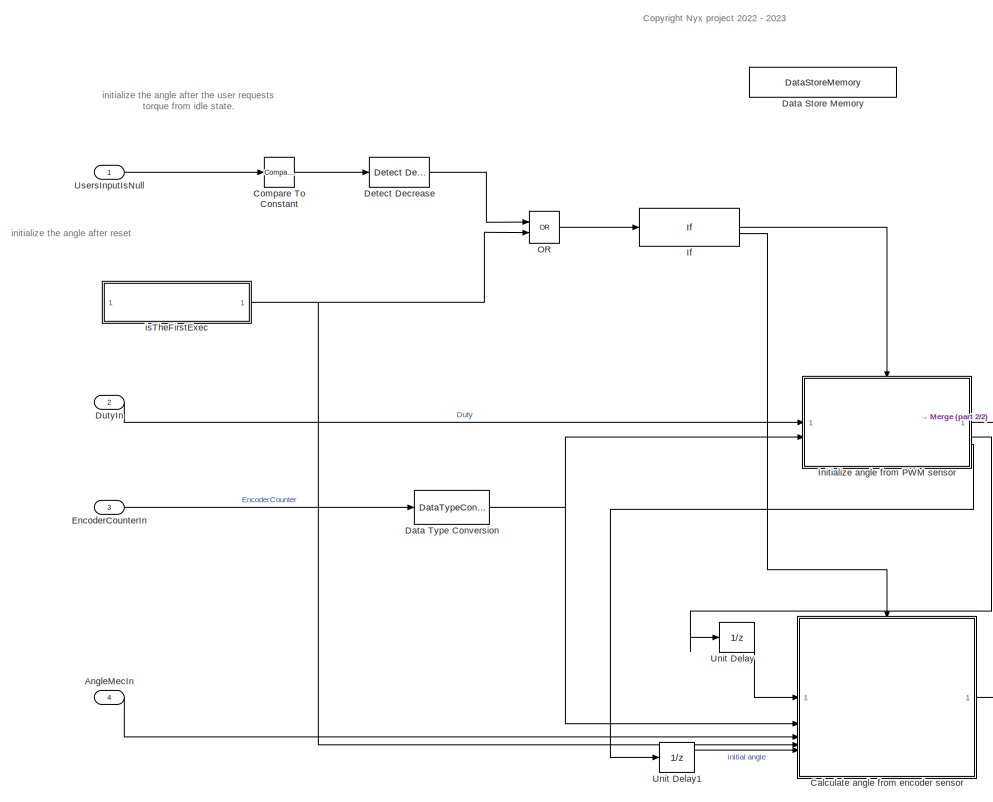
[diagram: root canvas - part 1/2, left side, full height]
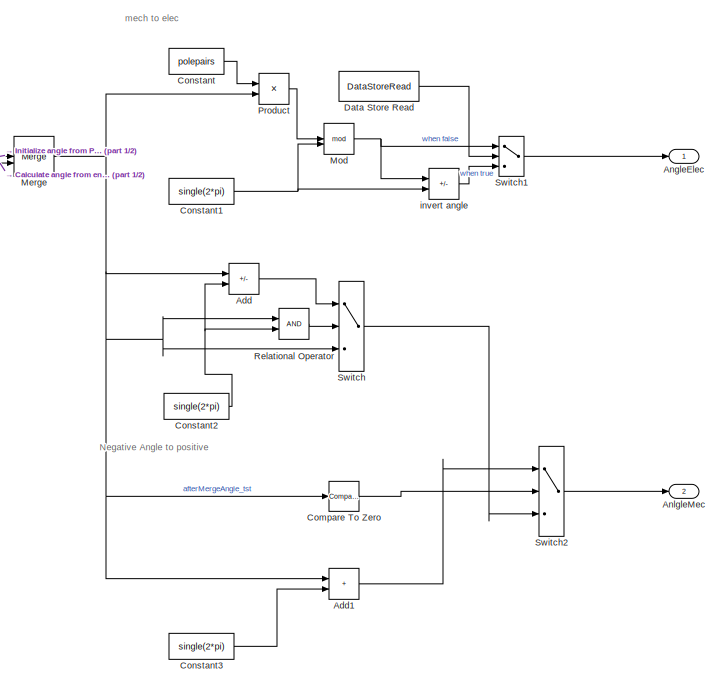
[diagram: root canvas - part 2/2, bottom right region]
MODEL slx_751210fbe877
KIND model
CONFIG AbsTol = auto
CONFIG EnableMultiTasking = off
CONFIG FixedStep = 4*Ts
CONFIG MaxStep = auto
CONFIG MinStep = auto
CONFIG RelTol = 1e-3
CONFIG SampleTimeConstraint = Unconstrained
CONFIG SolverName = FixedStepDiscrete
CONFIG StartTime = 0.0
CONFIG StopTime = 10.0
BLOCK [Sum] Add
  IconShape = rectangular
  Inputs = +-
BLOCK [Sum] Add1
  IconShape = rectangular
BLOCK [Outport] AngleElec
BLOCK [Inport] AngleMecIn
  OutDataTypeStr = single
  Port = 4
BLOCK [Outport] AnlgleMec
  Port = 2
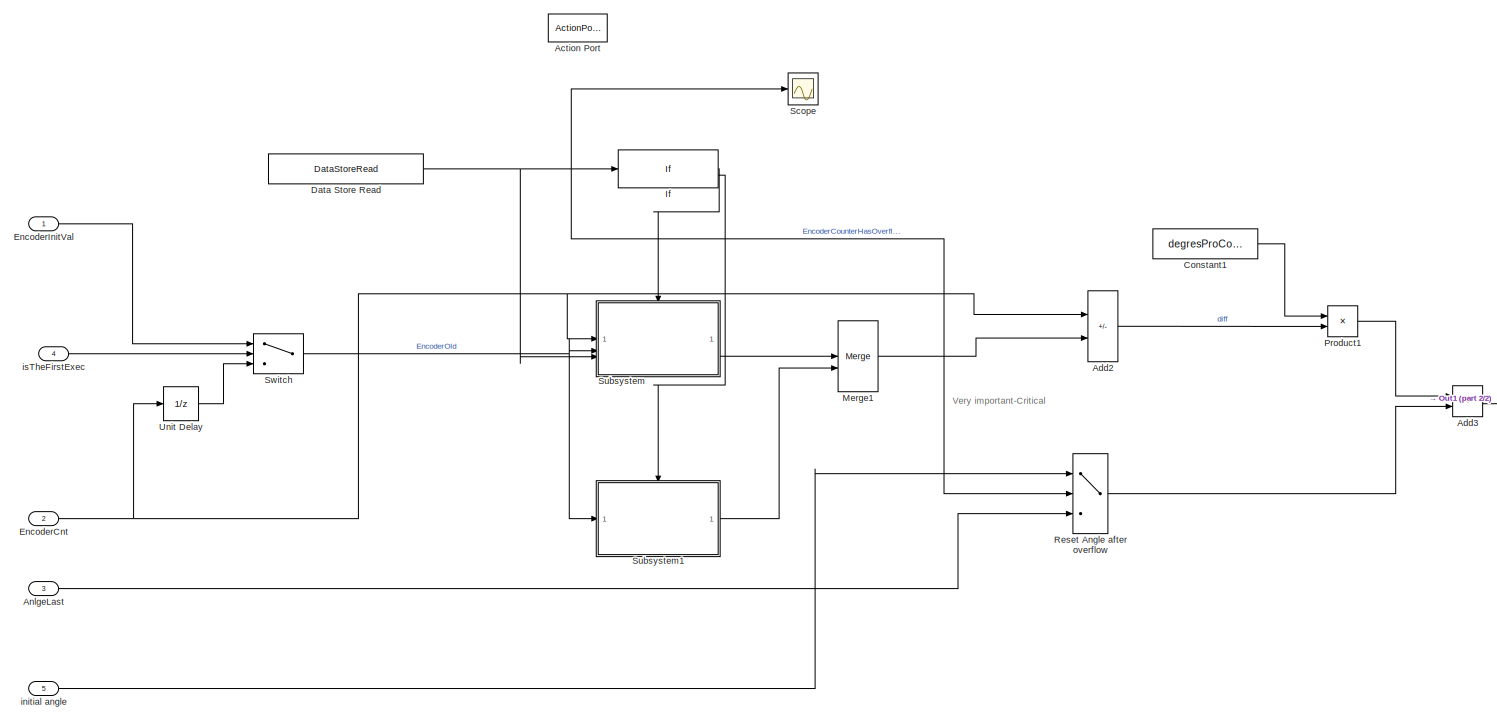
[diagram: Calculate angle from encoder sensor - part 1/2, most of the canvas]
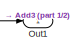
[diagram: Calculate angle from encoder sensor - part 2/2, middle right region]
BLOCK [SubSystem] Calculate angle from encoder sensor
  TreatAsAtomicUnit = on
BLOCK [ActionPort] Calculate angle from encoder sensor/Action Port
  ActionPortLabel = else
BLOCK [Sum] Calculate angle from encoder sensor/Add2
  AccumDataTypeStr = Inherit: Same as first input
  IconShape = rectangular
  InputSameDT = on
  Inputs = +-
  OutDataTypeStr = Inherit: Same as first input
  SaturateOnIntegerOverflow = on
BLOCK [Sum] Calculate angle from encoder sensor/Add3
  IconShape = rectangular
BLOCK [Inport] Calculate angle from encoder sensor/AnlgeLast
  Port = 3
BLOCK [Constant] Calculate angle from encoder sensor/Constant1
  Value = degresProCounter
BLOCK [DataStoreRead] Calculate angle from encoder sensor/Data Store Read
  DataStoreName = EncoderCounterHasOverflowed
  IndexOptions = Index vector (dialog)
  Indices = 1
  OutputSizes = 1
BLOCK [Inport] Calculate angle from encoder sensor/EncoderCnt
  Port = 2
BLOCK [Inport] Calculate angle from encoder sensor/EncoderInitVal
BLOCK [If] Calculate angle from encoder sensor/If
  IfExpression = u1  == 1
BLOCK [Merge] Calculate angle from encoder sensor/Merge1
BLOCK [Outport] Calculate angle from encoder sensor/Out1
BLOCK [Product] Calculate angle from encoder sensor/Product1
  OutDataTypeStr = single
  RndMeth = Simplest
BLOCK [Switch] Calculate angle from encoder sensor/Reset Angle after overflow
  Criteria = u2 > Threshold
  InputSameDT = off
  SaturateOnIntegerOverflow = off
BLOCK [Scope] Calculate angle from encoder sensor/Scope
  Floating = off
  NumInputPorts = 1
  ScopeSpecificationString = Simulink.scopes.TimeScopeBlockCfg('CurrentConfiguration', extmgr.ConfigurationSet(extmgr.Configuration('Core','General UI',true),extmgr.Configuration('Core','Source UI',true),extmgr.Configuration('Sources','WiredSimulink',true),extmgr.Configuration('Visuals','Time Domain',true,'SerializedDisplays',{struct('MinYLimReal','-0.125','MaxYLimReal','1.125','YLabelReal','','MinYLimMag','0.00000','MaxYLimM...<+1381ch>
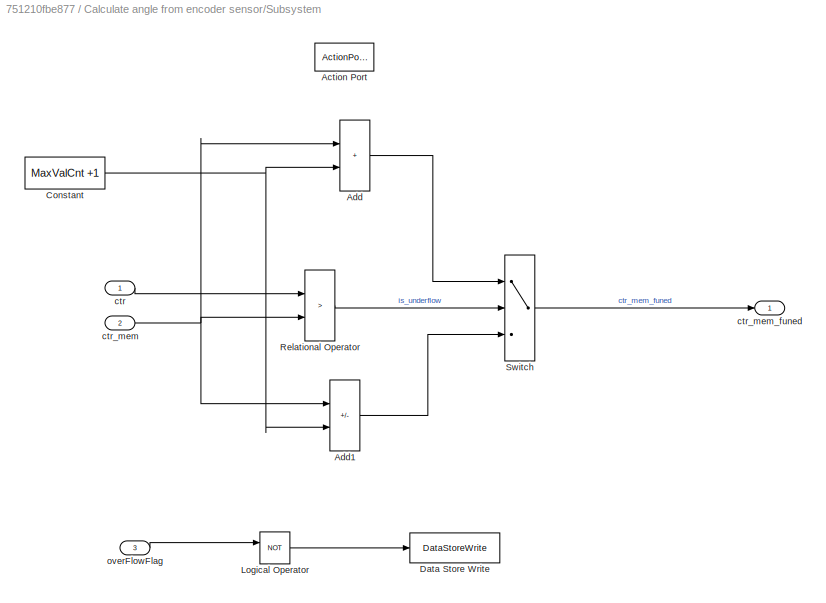
BLOCK [SubSystem] Calculate angle from encoder sensor/Subsystem
BLOCK [ActionPort] Calculate angle from encoder sensor/Subsystem/Action Port
  ActionPortLabel = if(u1  == 1)
BLOCK [Sum] Calculate angle from encoder sensor/Subsystem/Add
  AccumDataTypeStr = Inherit: Same as first input
  IconShape = rectangular
  OutDataTypeStr = Inherit: Same as first input
  SaturateOnIntegerOverflow = on
BLOCK [Sum] Calculate angle from encoder sensor/Subsystem/Add1
  AccumDataTypeStr = Inherit: Same as first input
  IconShape = rectangular
  Inputs = +-
  OutDataTypeStr = Inherit: Same as first input
  SaturateOnIntegerOverflow = on
BLOCK [Constant] Calculate angle from encoder sensor/Subsystem/Constant
  Value = MaxValCnt +1
BLOCK [DataStoreWrite] Calculate angle from encoder sensor/Subsystem/Data Store Write
  DataStoreName = EncoderCounterHasOverflowed
  IndexOptions = Index vector (dialog)
  Indices = 1
  OutputSizes = 1
BLOCK [Logic] Calculate angle from encoder sensor/Subsystem/Logical Operator
  AllPortsSameDT = off
  IconShape = distinctive
  Operator = NOT
  OutDataTypeStr = boolean
BLOCK [RelationalOperator] Calculate angle from encoder sensor/Subsystem/Relational Operator
  Operator = >
  OutDataTypeStr = boolean
  RndMeth = Simplest
BLOCK [Switch] Calculate angle from encoder sensor/Subsystem/Switch
  Criteria = u2 ~= 0
  OutDataTypeStr = Inherit: Same as first input
  SaturateOnIntegerOverflow = off
BLOCK [Inport] Calculate angle from encoder sensor/Subsystem/ctr
BLOCK [Inport] Calculate angle from encoder sensor/Subsystem/ctr_mem
  Port = 2
BLOCK [Outport] Calculate angle from encoder sensor/Subsystem/ctr_mem_funed
BLOCK [Inport] Calculate angle from encoder sensor/Subsystem/overFlowFlag
  Port = 3
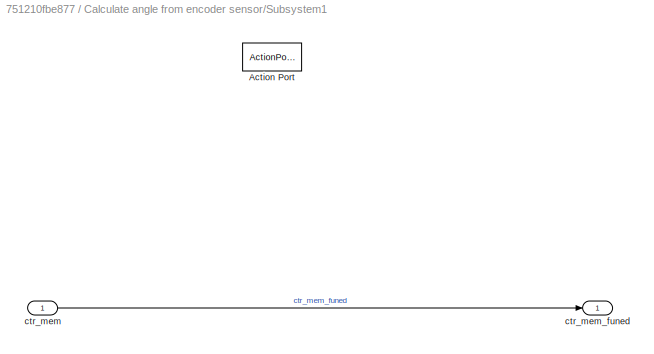
BLOCK [SubSystem] Calculate angle from encoder sensor/Subsystem1
BLOCK [ActionPort] Calculate angle from encoder sensor/Subsystem1/Action Port
  ActionPortLabel = else
BLOCK [Inport] Calculate angle from encoder sensor/Subsystem1/ctr_mem
BLOCK [Outport] Calculate angle from encoder sensor/Subsystem1/ctr_mem_funed
BLOCK [Switch] Calculate angle from encoder sensor/Switch
  Criteria = u2 > Threshold
  InputSameDT = off
  SaturateOnIntegerOverflow = off
  Threshold = false
BLOCK [UnitDelay] Calculate angle from encoder sensor/Unit Delay
  HasFrameUpgradeWarning = on
  SampleTime = -1
  StateMustResolveToSignalObject = on
  StateName = EncoderCounterOld
BLOCK [Inport] Calculate angle from encoder sensor/initial angle
  Port = 5
BLOCK [Inport] Calculate angle from encoder sensor/isTheFirstExec
  Port = 4
BLOCK [Reference] Compare To Constant  REF=simulink/Logic and Bit
Operations/Compare
To Constant
  SourceBlock = simulink/Logic and Bit\nOperations/Compare\nTo Constant
  SourceType = Compare To Constant
BLOCK [Reference] Compare To Zero  REF=simulink/Logic and Bit
Operations/Compare
To Zero
  SourceBlock = simulink/Logic and Bit\nOperations/Compare\nTo Zero
  SourceType = Compare To Zero
BLOCK [Constant] Constant
  Value = polepairs
BLOCK [Constant] Constant1
  OutDataTypeStr = single
  Value = single(2*pi)
BLOCK [Constant] Constant2
  OutDataTypeStr = single
  Value = single(2*pi)
BLOCK [Constant] Constant3
  OutDataTypeStr = single
  Value = single(2*pi)
BLOCK [DataStoreMemory] Data Store Memory
  DataStoreName = Sig_invert_angleElec
  InitialValue = 1
  ShowAdditionalParam = off
  StateMustResolveToSignalObject = on
  WriteAfterWriteMsg = warning
BLOCK [DataStoreRead] Data Store Read
  DataStoreName = Sig_invert_angleElec
  IndexOptions = Index vector (dialog)
  Indices = 1
  OutputSizes = 1
BLOCK [DataTypeConversion] Data Type Conversion
  OutDataTypeStr = int32
  RndMeth = Floor
  SaturateOnIntegerOverflow = off
BLOCK [Reference] Detect Decrease  REF=simulink/Logic and Bit
Operations/Detect
Decrease
  SourceBlock = simulink/Logic and Bit\nOperations/Detect\nDecrease
  SourceType = Detect Decrease
BLOCK [Inport] DutyIn
  OutDataTypeStr = uint16
  Port = 2
BLOCK [Inport] EncoderCounterIn
  OutDataTypeStr = uint32
  Port = 3
BLOCK [If] If
  IfExpression = u1  == 1
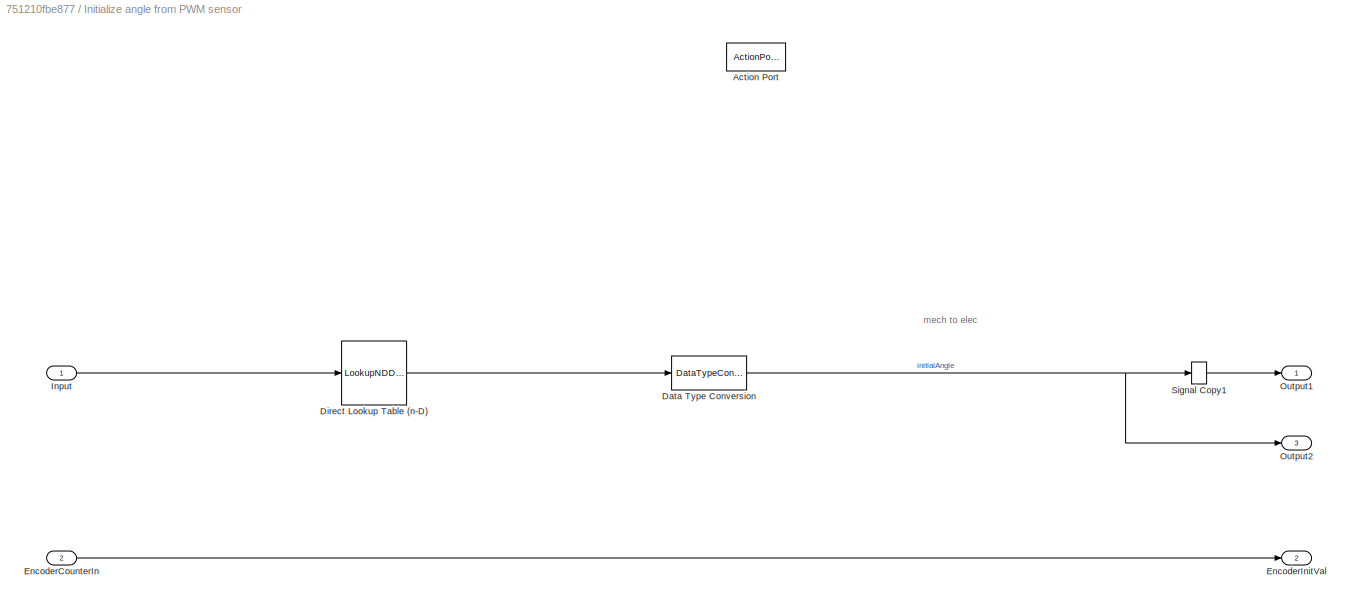
BLOCK [SubSystem] Initialize angle from PWM sensor
BLOCK [ActionPort] Initialize angle from PWM sensor/Action Port
  ActionPortLabel = if(u1  == 1)
BLOCK [DataTypeConversion] Initialize angle from PWM sensor/Data Type Conversion
  OutDataTypeStr = single
  RndMeth = Floor
  SaturateOnIntegerOverflow = off
BLOCK [LookupNDDirect] Initialize angle from PWM sensor/Direct Lookup Table (n-D)
  NumberOfTableDimensions = 1
  Table = Angle_T
BLOCK [Inport] Initialize angle from PWM sensor/EncoderCounterIn
  Port = 2
BLOCK [Outport] Initialize angle from PWM sensor/EncoderInitVal
  Port = 2
BLOCK [Inport] Initialize angle from PWM sensor/Input
  OutDataTypeStr = uint16
BLOCK [Outport] Initialize angle from PWM sensor/Output1
BLOCK [Outport] Initialize angle from PWM sensor/Output2
  Port = 3
BLOCK [SignalConversion] Initialize angle from PWM sensor/Signal Copy1
  OverrideOpt = off
BLOCK [Merge] Merge
BLOCK [Math] Mod
  Operator = mod
  OutputSignalType = real
BLOCK [Logic] OR
  AllPortsSameDT = off
  IconShape = distinctive
  Operator = OR
  OutDataTypeStr = boolean
BLOCK [Product] Product
  OutDataTypeStr = single
  RndMeth = Simplest
BLOCK [RelationalOperator] Relational Operator
  InputSameDT = off
  OutDataTypeStr = boolean
  RndMeth = Simplest
BLOCK [Switch] Switch
  Criteria = u2 > Threshold
  InputSameDT = off
  SaturateOnIntegerOverflow = off
BLOCK [Switch] Switch1
  Criteria = u2 > Threshold
  InputSameDT = off
  SaturateOnIntegerOverflow = off
BLOCK [Switch] Switch2
  Criteria = u2 > Threshold
  InputSameDT = off
  SaturateOnIntegerOverflow = off
BLOCK [UnitDelay] Unit Delay
  HasFrameUpgradeWarning = on
  SampleTime = -1
BLOCK [UnitDelay] Unit Delay1
  HasFrameUpgradeWarning = on
  SampleTime = -1
BLOCK [Inport] UsersInputIsNull
  OutDataTypeStr = boolean
BLOCK [Sum] invert angle
  IconShape = rectangular
  Inputs = -+
BLOCK [SubSystem] isTheFirstExec
  ReferencedSubsystem = detectStartUp
  SystemSampleTime = 4*Ts
ANNOTATION (root): <copyright redacted>
ANNOTATION (root): Negative Angle to positive
ANNOTATION (root): initialize the angle after reset
ANNOTATION (root): initialize the angle after the user requests torque from idle state.
ANNOTATION (root): mech to elec
ANNOTATION Calculate angle from encoder sensor: Very important-Critical
ANNOTATION Initialize angle from PWM sensor: mech to elec
LINE Add1:1 -> Switch2:1
LINE Add:1 -> Switch:1
LINE AngleMecIn:1 -> Calculate angle from encoder sensor:3
LINE Calculate angle from encoder sensor/Add2:1 -> Calculate angle from encoder sensor/Product1:2
LINE Calculate angle from encoder sensor/Add3:1 -> Calculate angle from encoder sensor/Out1:1
LINE Calculate angle from encoder sensor/AnlgeLast:1 -> Calculate angle from encoder sensor/Reset Angle after overflow:3
LINE Calculate angle from encoder sensor/Constant1:1 -> Calculate angle from encoder sensor/Product1:1
NET Calculate angle from encoder sensor/Data Store Read:1 -> Calculate angle from encoder sensor/If:1, Calculate angle from encoder sensor/Reset Angle after overflow:2, Calculate angle from encoder sensor/Scope:1, Calculate angle from encoder sensor/Subsystem:3
NET Calculate angle from encoder sensor/EncoderCnt:1 -> Calculate angle from encoder sensor/Add2:1, Calculate angle from encoder sensor/Subsystem:1, Calculate angle from encoder sensor/Unit Delay:1
LINE Calculate angle from encoder sensor/EncoderInitVal:1 -> Calculate angle from encoder sensor/Switch:1
LINE Calculate angle from encoder sensor/If:1 -> Calculate angle from encoder sensor/Subsystem:ifaction
LINE Calculate angle from encoder sensor/If:2 -> Calculate angle from encoder sensor/Subsystem1:ifaction
LINE Calculate angle from encoder sensor/Merge1:1 -> Calculate angle from encoder sensor/Add2:2
LINE Calculate angle from encoder sensor/Product1:1 -> Calculate angle from encoder sensor/Add3:1
LINE Calculate angle from encoder sensor/Reset Angle after overflow:1 -> Calculate angle from encoder sensor/Add3:2
LINE Calculate angle from encoder sensor/Subsystem/Add1:1 -> Calculate angle from encoder sensor/Subsystem/Switch:3
LINE Calculate angle from encoder sensor/Subsystem/Add:1 -> Calculate angle from encoder sensor/Subsystem/Switch:1
NET Calculate angle from encoder sensor/Subsystem/Constant:1 -> Calculate angle from encoder sensor/Subsystem/Add1:2, Calculate angle from encoder sensor/Subsystem/Add:2
LINE Calculate angle from encoder sensor/Subsystem/Logical Operator:1 -> Calculate angle from encoder sensor/Subsystem/Data Store Write:1
LINE Calculate angle from encoder sensor/Subsystem/Relational Operator:1 -> Calculate angle from encoder sensor/Subsystem/Switch:2
LINE Calculate angle from encoder sensor/Subsystem/Switch:1 -> Calculate angle from encoder sensor/Subsystem/ctr_mem_funed:1
LINE Calculate angle from encoder sensor/Subsystem/ctr:1 -> Calculate angle from encoder sensor/Subsystem/Relational Operator:1
NET Calculate angle from encoder sensor/Subsystem/ctr_mem:1 -> Calculate angle from encoder sensor/Subsystem/Add1:1, Calculate angle from encoder sensor/Subsystem/Add:1, Calculate angle from encoder sensor/Subsystem/Relational Operator:2
LINE Calculate angle from encoder sensor/Subsystem/overFlowFlag:1 -> Calculate angle from encoder sensor/Subsystem/Logical Operator:1
LINE Calculate angle from encoder sensor/Subsystem1/ctr_mem:1 -> Calculate angle from encoder sensor/Subsystem1/ctr_mem_funed:1
LINE Calculate angle from encoder sensor/Subsystem1:1 -> Calculate angle from encoder sensor/Merge1:2
LINE Calculate angle from encoder sensor/Subsystem:1 -> Calculate angle from encoder sensor/Merge1:1
NET Calculate angle from encoder sensor/Switch:1 -> Calculate angle from encoder sensor/Subsystem1:1, Calculate angle from encoder sensor/Subsystem:2
LINE Calculate angle from encoder sensor/Unit Delay:1 -> Calculate angle from encoder sensor/Switch:3
LINE Calculate angle from encoder sensor/initial angle:1 -> Calculate angle from encoder sensor/Reset Angle after overflow:1
LINE Calculate angle from encoder sensor/isTheFirstExec:1 -> Calculate angle from encoder sensor/Switch:2
LINE Calculate angle from encoder sensor:1 -> Merge:2
LINE Compare To Constant:1 -> Detect Decrease:1
LINE Compare To Zero:1 -> Switch2:2
NET Constant1:1 -> Mod:2, invert angle:2
NET Constant2:1 -> Add:2, Relational Operator:2
LINE Constant3:1 -> Add1:2
LINE Constant:1 -> Product:1
LINE Data Store Read:1 -> Switch1:2
NET Data Type Conversion:1 -> Calculate angle from encoder sensor:2, Initialize angle from PWM sensor:2
LINE Detect Decrease:1 -> OR:1
LINE DutyIn:1 -> Initialize angle from PWM sensor:1
LINE EncoderCounterIn:1 -> Data Type Conversion:1
LINE If:1 -> Initialize angle from PWM sensor:ifaction
LINE If:2 -> Calculate angle from encoder sensor:ifaction
NET Initialize angle from PWM sensor/Data Type Conversion:1 -> Initialize angle from PWM sensor/Output2:1, Initialize angle from PWM sensor/Signal Copy1:1
LINE Initialize angle from PWM sensor/Direct Lookup Table (n-D):1 -> Initialize angle from PWM sensor/Data Type Conversion:1
LINE Initialize angle from PWM sensor/EncoderCounterIn:1 -> Initialize angle from PWM sensor/EncoderInitVal:1
LINE Initialize angle from PWM sensor/Input:1 -> Initialize angle from PWM sensor/Direct Lookup Table (n-D):1
LINE Initialize angle from PWM sensor/Signal Copy1:1 -> Initialize angle from PWM sensor/Output1:1
LINE Initialize angle from PWM sensor:1 -> Merge:1
LINE Initialize angle from PWM sensor:2 -> Unit Delay:1
LINE Initialize angle from PWM sensor:3 -> Unit Delay1:1
NET Merge:1 -> Add1:1, Add:1, Compare To Zero:1, Product:2, Relational Operator:1, Switch:3
NET Mod:1 -> Switch1:1, invert angle:1
LINE OR:1 -> If:1
LINE Product:1 -> Mod:1
LINE Relational Operator:1 -> Switch:2
LINE Switch1:1 -> AngleElec:1
LINE Switch2:1 -> AnlgleMec:1
LINE Switch:1 -> Switch2:3
LINE Unit Delay1:1 -> Calculate angle from encoder sensor:5
LINE Unit Delay:1 -> Calculate angle from encoder sensor:1
LINE UsersInputIsNull:1 -> Compare To Constant:1
LINE invert angle:1 -> Switch1:3
NET isTheFirstExec:1 -> Calculate angle from encoder sensor:4, OR:2
note: NET lines group one-source signal fan-out (src -> all destinations, sorted); 1:1 wires keep LINE
